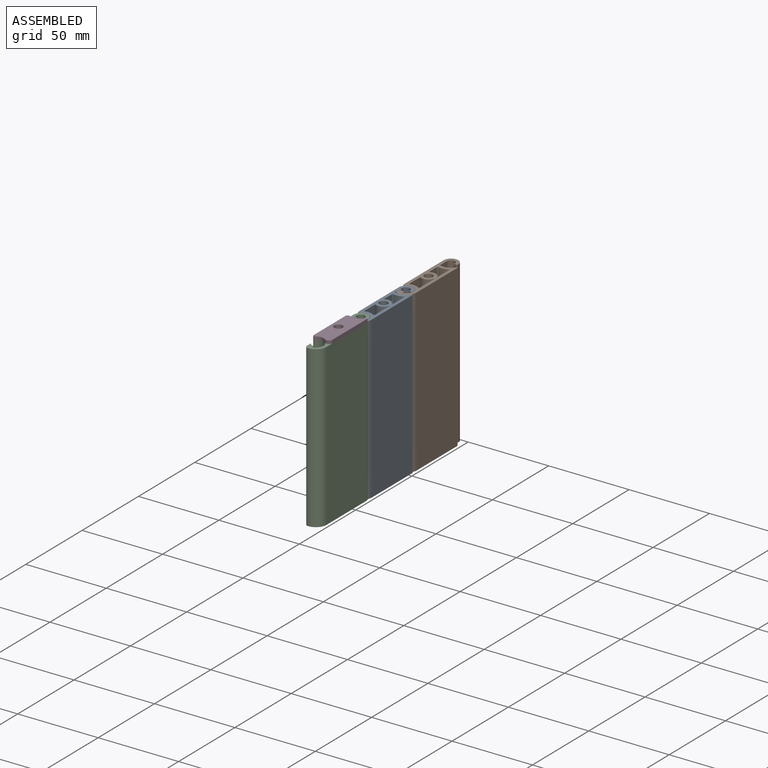
[diagram: assembled view]
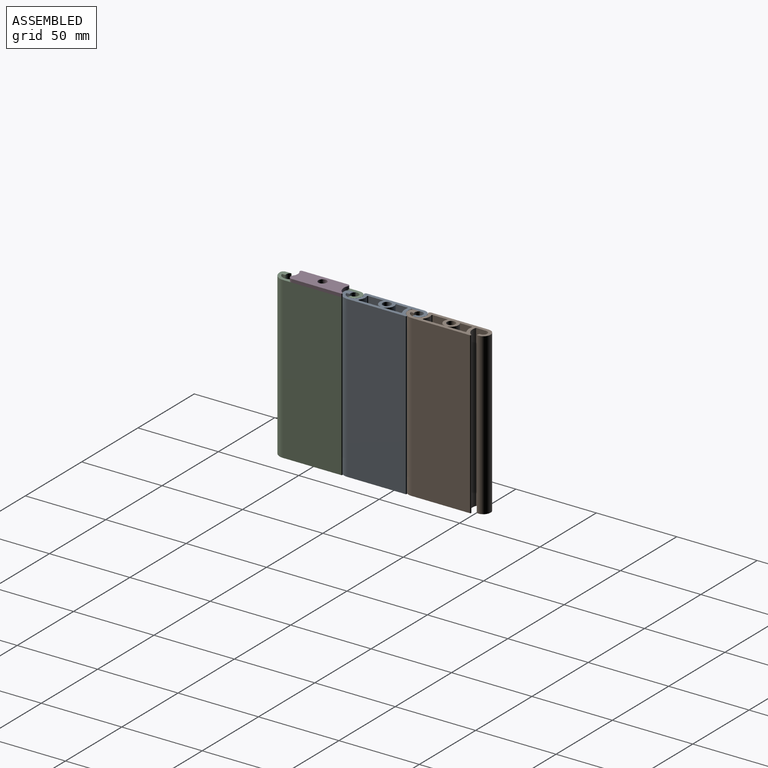
[diagram: assembled view, second angle]
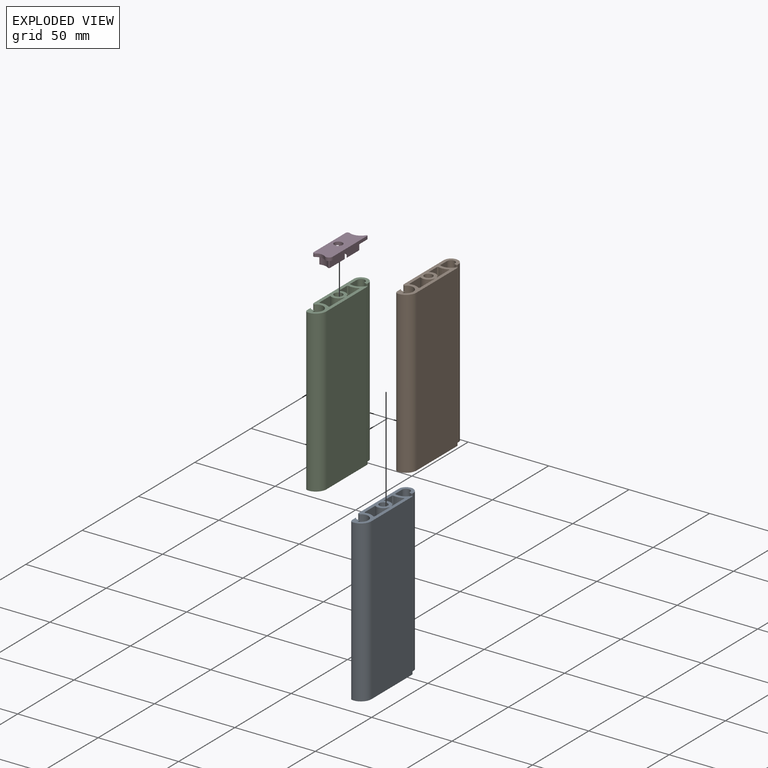
[diagram: exploded view]
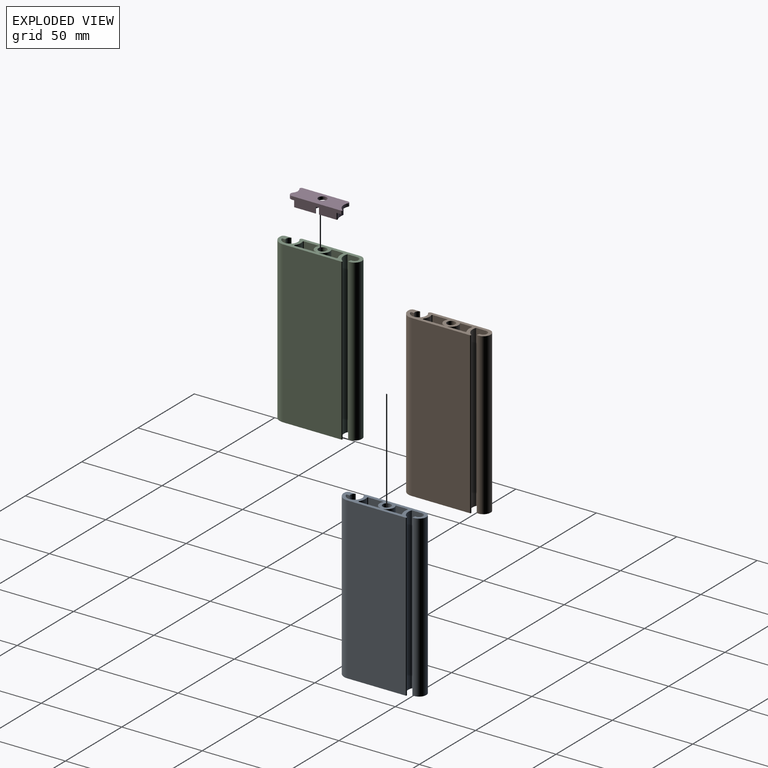
[diagram: exploded view, second angle]
ASSEMBLY  parts=4 mates=3
PART A: 34 faces, bbox 11.1x51.1x100 mm
  f0: cylinder r=2.6mm len=100mm, axis (0,0,1), area 1633.6mm2, adj f12,f33
  f1: cylinder r=4.5mm len=100mm, axis (0,0,1), area 871.1mm2, adj f12,f23,f31,f33
  f2: cylinder r=2.6mm len=100mm, axis (0,0,1), area 408.4mm2, adj f12,f13,f20,f33
  f3: cylinder r=0.5mm len=100mm, axis (0,0,-1), area 129.1mm2, adj f12,f15,f16,f33
  f4: cylinder r=0.5mm len=100mm, axis (0,0,-1), area 89.5mm2, adj f11,f12,f22,f33
  f5: cylinder r=0.5mm len=100mm, axis (0,0,-1), area 101.6mm2, adj f12,f21,f22,f33
  f6: cylinder r=6.6mm len=100mm, axis (0,0,-1), area 594.8mm2, adj f12,f28,f29,f33
  f7: cylinder r=4.6mm len=100mm, axis (0,0,-1), area 1654.9mm2, adj f12,f20,f24,f33
  f8: cylinder r=4.5mm len=100mm, axis (0,0,-1), area 1510.6mm2, adj f12,f19,f27,f33
  f9: cylinder r=2.5mm len=100mm, axis (0,0,-1), area 832.3mm2, adj f12,f17,f26,f33
  f10: plane 100x13.2mm, normal (-1,0,0), area 1320.3mm2, adj f12,f28,f31,f33
  f11: plane 100x7.28mm, normal (1,0,0), area 727.8mm2, adj f4,f12,f30,f33
  f12: plane 51.1x11.1mm, normal (0,0,-1), area 262.3mm2, adj f0,f1,f2,f3,f4,f5,f6,f7
  f13: plane 100x3.58mm, normal (-1,0,0), area 358.3mm2, adj f2,f12,f25,f33
  f14: cylinder r=6.6mm len=100mm, axis (0,0,-1), area 1094.2mm2, adj f12,f15,f25,f33
  f15: plane 100x36.18mm, normal (1,0,0), area 3617.5mm2, adj f3,f12,f14,f33
  f16: cylinder r=6.7mm len=100mm, axis (0,0,-1), area 933.4mm2, adj f3,f12,f17,f33
  f17: plane 100x6.22mm, normal (1,0,0), area 621.6mm2, adj f9,f12,f16,f33
  f18: plane 100x1.55mm, normal (-0.26,-0.97,0), area 160.3mm2, adj f12,f26,f27,f33
  f19: plane 100x35.63mm, normal (-1,0,0), area 3562.9mm2, adj f8,f12,f24,f33
  f20: plane 100x2.09mm, normal (1,0,0), area 209mm2, adj f2,f7,f12,f33
  f21: plane 100x10.76mm, normal (-1,0,0), area 1076.4mm2, adj f5,f12,f32,f33
  f22: cylinder r=8.7mm len=100mm, axis (0,0,-1), area 592.5mm2, adj f4,f5,f12,f33
  f23: plane 100x9.45mm, normal (1,0,0), area 944.6mm2, adj f1,f12,f29,f33
  f24: cylinder r=1mm len=100mm, axis (0,0,-1), area 224.6mm2, adj f7,f12,f19,f33
  f25: cylinder r=2mm len=100mm, axis (0,0,-1), area 296.7mm2, adj f12,f13,f14,f33
  f26: cylinder r=0.2mm len=100mm, axis (0,0,-1), area 29.9mm2, adj f9,f12,f18,f33
  f27: cylinder r=0.2mm len=100mm, axis (0,0,-1), area 32.3mm2, adj f8,f12,f18,f33
  f28: cylinder r=0.5mm len=100mm, axis (0,0,-1), area 109.3mm2, adj f6,f10,f12,f33
  f29: cylinder r=0.5mm len=100mm, axis (0,0,-1), area 92.8mm2, adj f6,f12,f23,f33
  f30: cylinder r=4.5mm len=100mm, axis (0,0,1), area 871.1mm2, adj f11,f12,f32,f33
  f31: plane 100x0.21mm, normal (0,-1,0), area 21.3mm2, adj f1,f10,f12,f33
  f32: plane 100x0.21mm, normal (0,1,0), area 21.3mm2, adj f12,f21,f30,f33
  f33: plane 51.1x11.1mm, normal (0,0,1), area 262.3mm2, adj f0,f1,f2,f3,f4,f5,f6,f7
PART B: same geometry as A
PART C: same geometry as A
PART D: 37 faces, bbox 11.1x33.5x7 mm
  f0: plane 33.51x11.1mm, normal (0,0,-1), area 187.9mm2, adj f1,f2,f3,f4,f5,f6,f7,f8
  f1: plane 30.64x2mm, normal (1,0,0), area 61.3mm2, adj f0,f2,f9,f10
  f2: cylinder r=0.5mm len=2mm, axis (0,0,-1), area 2.6mm2, adj f0,f1,f3,f10
  f3: cylinder r=6.7mm len=8.49mm, axis (0,0,-1), area 19.3mm2, adj f0,f2,f4,f10
  f4: cylinder r=1.19mm len=2mm, axis (0,0,-1), area 4.8mm2, adj f0,f3,f5,f10
  f5: plane 28.47x2mm, normal (-1,0,0), area 56.9mm2, adj f0,f4,f6,f10
  f6: cylinder r=1mm len=2mm, axis (0,0,-1), area 4.5mm2, adj f0,f5,f7,f10
  f7: cylinder r=4.6mm len=5.67mm, axis (0,0,-1), area 12.2mm2, adj f0,f6,f9,f10
  f8: cylinder r=2.6mm len=5.2mm, axis (0,0,-1), area 32.7mm2, adj f0,f10
  f9: cylinder r=2.37mm len=3.8mm, axis (0,0,-1), area 10.5mm2, adj f0,f1,f7,f10
  f10: plane 33.51x11.1mm, normal (0,0,1), area 314.6mm2, adj f1,f2,f3,f4,f5,f6,f7,f8
  f11: plane 6.83x5mm, normal (-1,0,0), area 34.2mm2, adj f12,f21,f22,f23
  f12: cylinder r=5.5mm len=5.1mm, axis (0,0,1), area 27.2mm2, adj f11,f13,f22,f23
  f13: plane 5.13x5mm, normal (1,0,0), area 25.6mm2, adj f12,f21,f22,f23
  f14: plane 10.76x5mm, normal (1,0,0), area 53.8mm2, adj f0,f15,f20,f22
  f15: cylinder r=0.5mm len=5mm, axis (0,0,1), area 5.1mm2, adj f0,f14,f16,f22
  f16: cylinder r=8.7mm len=5.77mm, axis (0,0,1), area 29.6mm2, adj f0,f15,f17,f22
  f17: cylinder r=0.5mm len=5mm, axis (0,0,1), area 4.5mm2, adj f0,f16,f18,f22
  f18: plane 7.28x5mm, normal (-1,0,0), area 36.4mm2, adj f0,f17,f19,f22
  f19: cylinder r=4.5mm len=6.89mm, axis (0,0,1), area 43.6mm2, adj f0,f18,f20,f22
  f20: plane 5x0.21mm, normal (0,-1,0), area 1.1mm2, adj f0,f14,f19,f22
  f21: cylinder r=9.7mm len=5.1mm, axis (0,0,1), area 26mm2, adj f11,f13,f22,f23
  f22: plane 11.26x7.1mm, normal (0,0,-1), area 28.6mm2, adj f11,f12,f13,f14,f15,f16,f17,f18
  f23: plane 6.83x5.1mm, normal (0,0,-1), area 27mm2, adj f11,f12,f13,f21
  f24: cylinder r=5.5mm len=5.1mm, axis (0,0,1), area 27.2mm2, adj f25,f34,f35,f36
  f25: plane 9.15x5mm, normal (-1,0,0), area 45.7mm2, adj f24,f26,f35,f36
  f26: cylinder r=7.6mm len=5.1mm, axis (0,0,1), area 26.3mm2, adj f25,f34,f35,f36
  f27: cylinder r=6.6mm len=5.67mm, axis (0,0,1), area 29.7mm2, adj f0,f28,f33,f35
  f28: cylinder r=0.5mm len=5mm, axis (0,0,1), area 5.5mm2, adj f0,f27,f29,f35
  f29: plane 13.2x5mm, normal (1,0,0), area 66mm2, adj f0,f28,f30,f35
  f30: plane 5x0.21mm, normal (0,1,0), area 1.1mm2, adj f0,f29,f31,f35
  f31: cylinder r=4.5mm len=6.89mm, axis (0,0,1), area 43.6mm2, adj f0,f30,f32,f35
  f32: plane 9.45x5mm, normal (-1,0,0), area 47.2mm2, adj f0,f31,f33,f35
  f33: cylinder r=0.5mm len=5mm, axis (0,0,1), area 4.6mm2, adj f0,f27,f32,f35
  f34: plane 7.26x5mm, normal (1,0,0), area 36.3mm2, adj f24,f26,f35,f36
  f35: plane 13.7x7.1mm, normal (0,0,-1), area 33.2mm2, adj f24,f25,f26,f27,f28,f29,f30,f31
  f36: plane 9.15x5.1mm, normal (0,0,-1), area 38mm2, adj f24,f25,f26,f34
PLACE A t=(-16.1,53.57,-8.19)mm
PLACE B t=(-16.1,93.57,-8.19)mm
PLACE C t=(-16.1,13.57,-8.19)mm fixed
PLACE D t=(-16.1,13.57,-9.19)mm
MATE fastened C.f8 <-> A.f2  axis (0,0,-1) through (-16.1,13.57,91.81)mm
MATE fastened A.f8 <-> B.f2  axis (0,0,-1) through (-16.1,53.57,91.81)mm
MATE fastened D.f8 <-> C.f0  axis (0,0,-1) through (-16.1,-6.43,91.81)mm
